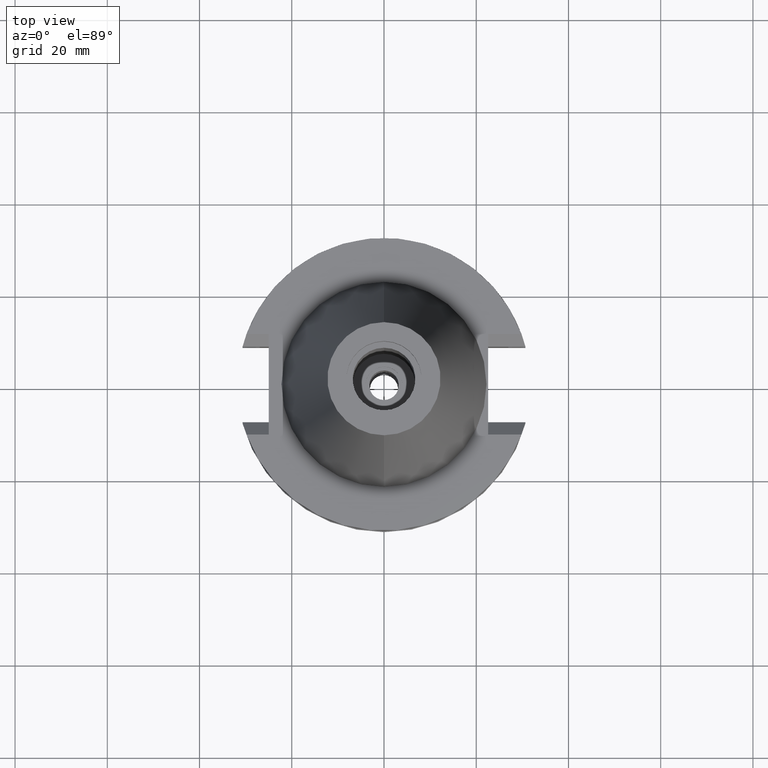
[diagram: clean part render]
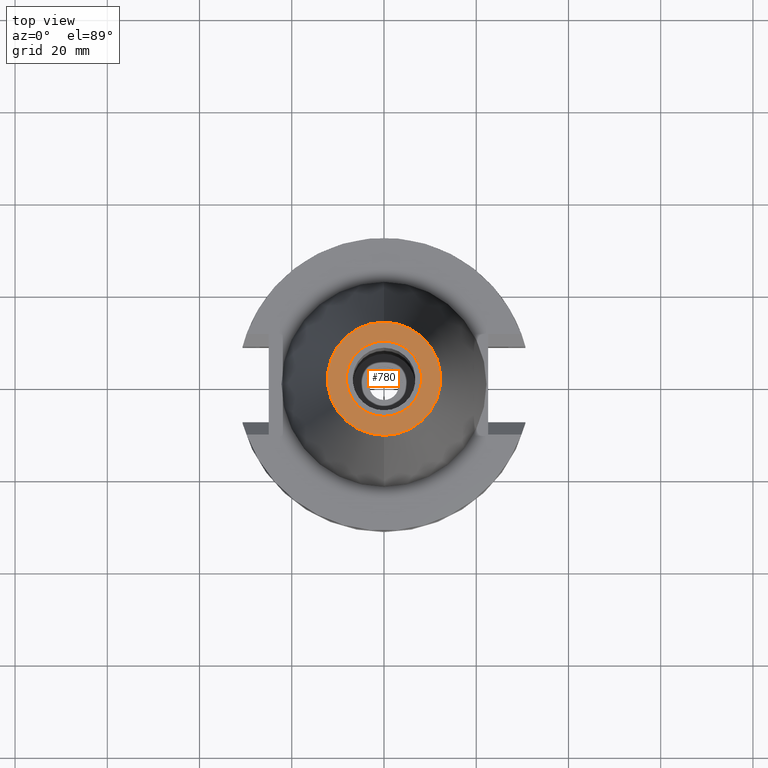
[diagram: same view with one face highlighted and labeled with its STEP entity id]
A machine part, top view. The second image highlights one B-rep face of the part: STEP entity #780.
In plain terms, the highlighted planar face has unit normal (0, 0, -1).
Its self-contained STEP definition (entity closure, byte-faithful):
#52 = PLANE ( 'NONE',  #2390 ) ;
#79 = CARTESIAN_POINT ( 'NONE',  ( 0.0000000000000000000, -8.160000000000000142, 68.25000000000000000 ) ) ;
#244 = DIRECTION ( 'NONE',  ( 0.0000000000000000000, -1.000000000000000000, 0.0000000000000000000 ) ) ;
#252 = DIRECTION ( 'NONE',  ( 0.0000000000000000000, 0.0000000000000000000, 1.000000000000000000 ) ) ;
#467 = DIRECTION ( 'NONE',  ( 0.0000000000000000000, -1.000000000000000000, 0.0000000000000000000 ) ) ;
#780 = ADVANCED_FACE ( 'NONE', ( #2291, #1289 ), #52, .F. ) ;
#883 = VERTEX_POINT ( 'NONE', #1933 ) ;
#885 = DIRECTION ( 'NONE',  ( 0.0000000000000000000, 1.000000000000000000, 0.0000000000000000000 ) ) ;
#1046 = DIRECTION ( 'NONE',  ( 0.0000000000000000000, 0.0000000000000000000, -1.000000000000000000 ) ) ;
#1129 = ORIENTED_EDGE ( 'NONE', *, *, #2102, .F. ) ;
#1159 = AXIS2_PLACEMENT_3D ( 'NONE', #1737, #252, #2744 ) ;
#1273 = CARTESIAN_POINT ( 'NONE',  ( 0.0000000000000000000, 2.060468239564999825E-14, 68.25000000000000000 ) ) ;
#1289 = FACE_BOUND ( 'NONE', #1942, .T. ) ;
#1376 = CARTESIAN_POINT ( 'NONE',  ( 0.0000000000000000000, 1.642557519355999895E-14, 68.25000000000000000 ) ) ;
#1470 = CARTESIAN_POINT ( 'NONE',  ( 0.0000000000000000000, 1.642557519355999895E-14, 68.25000000000000000 ) ) ;
#1698 = ORIENTED_EDGE ( 'NONE', *, *, #2015, .F. ) ;
#1715 = CIRCLE ( 'NONE', #2072, 12.27186888070000137 ) ;
#1721 = AXIS2_PLACEMENT_3D ( 'NONE', #1470, #2454, #244 ) ;
#1737 = CARTESIAN_POINT ( 'NONE',  ( 0.0000000000000000000, 2.138692553861000088E-14, 68.25000000000000000 ) ) ;
#1755 = ORIENTED_EDGE ( 'NONE', *, *, #2838, .F. ) ;
#1880 = EDGE_CURVE ( 'NONE', #2698, #883, #2856, .T. ) ;
#1933 = CARTESIAN_POINT ( 'NONE',  ( 0.0000000000000000000, 8.160000000000000142, 68.25000000000000000 ) ) ;
#1939 = DIRECTION ( 'NONE',  ( 0.0000000000000000000, 0.0000000000000000000, 1.000000000000000000 ) ) ;
#1942 = EDGE_LOOP ( 'NONE', ( #1129, #1998 ) ) ;
#1998 = ORIENTED_EDGE ( 'NONE', *, *, #1880, .F. ) ;
#2015 = EDGE_CURVE ( 'NONE', #2687, #2181, #2493, .T. ) ;
#2019 = DIRECTION ( 'NONE',  ( 0.0000000000000000000, -1.000000000000000000, 0.0000000000000000000 ) ) ;
#2048 = CARTESIAN_POINT ( 'NONE',  ( 0.0000000000000000000, -12.27186888070000137, 68.25000000000000000 ) ) ;
#2072 = AXIS2_PLACEMENT_3D ( 'NONE', #1376, #2381, #885 ) ;
#2076 = AXIS2_PLACEMENT_3D ( 'NONE', #3114, #1939, #467 ) ;
#2102 = EDGE_CURVE ( 'NONE', #883, #2698, #2340, .T. ) ;
#2181 = VERTEX_POINT ( 'NONE', #2242 ) ;
#2242 = CARTESIAN_POINT ( 'NONE',  ( 0.0000000000000000000, 12.27186888070000137, 68.25000000000000000 ) ) ;
#2291 = FACE_OUTER_BOUND ( 'NONE', #2478, .T. ) ;
#2340 = CIRCLE ( 'NONE', #1159, 8.160000000000000142 ) ;
#2381 = DIRECTION ( 'NONE',  ( 0.0000000000000000000, 0.0000000000000000000, -1.000000000000000000 ) ) ;
#2390 = AXIS2_PLACEMENT_3D ( 'NONE', #1273, #1046, #2019 ) ;
#2454 = DIRECTION ( 'NONE',  ( 0.0000000000000000000, 0.0000000000000000000, -1.000000000000000000 ) ) ;
#2478 = EDGE_LOOP ( 'NONE', ( #1755, #1698 ) ) ;
#2493 = CIRCLE ( 'NONE', #1721, 12.27186888070000137 ) ;
#2687 = VERTEX_POINT ( 'NONE', #2048 ) ;
#2698 = VERTEX_POINT ( 'NONE', #79 ) ;
#2744 = DIRECTION ( 'NONE',  ( 0.0000000000000000000, 1.000000000000000000, 0.0000000000000000000 ) ) ;
#2838 = EDGE_CURVE ( 'NONE', #2181, #2687, #1715, .T. ) ;
#2856 = CIRCLE ( 'NONE', #2076, 8.160000000000000142 ) ;
#3114 = CARTESIAN_POINT ( 'NONE',  ( 0.0000000000000000000, 2.138692553861000088E-14, 68.25000000000000000 ) ) ;